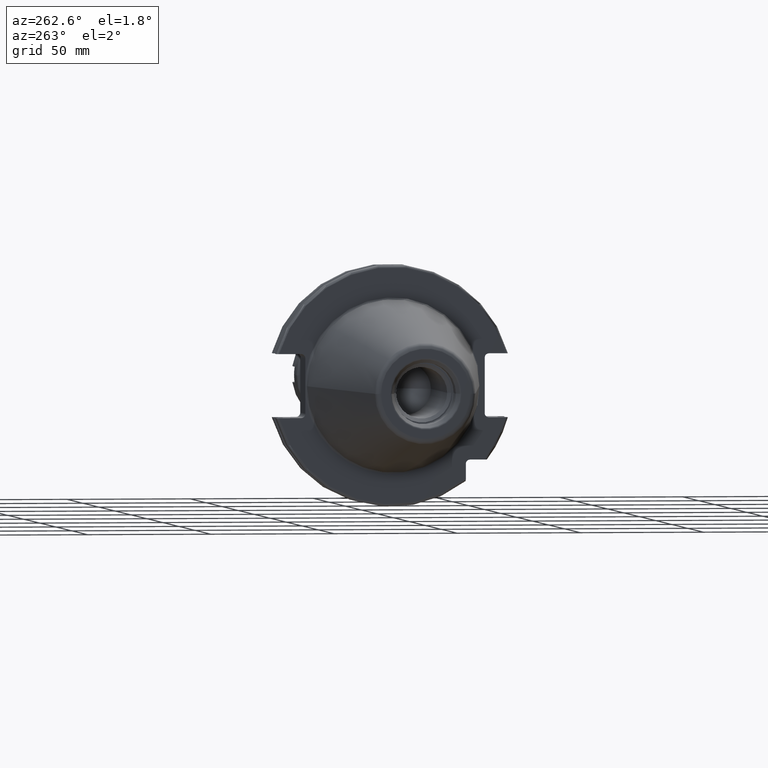
[diagram: clean part render]
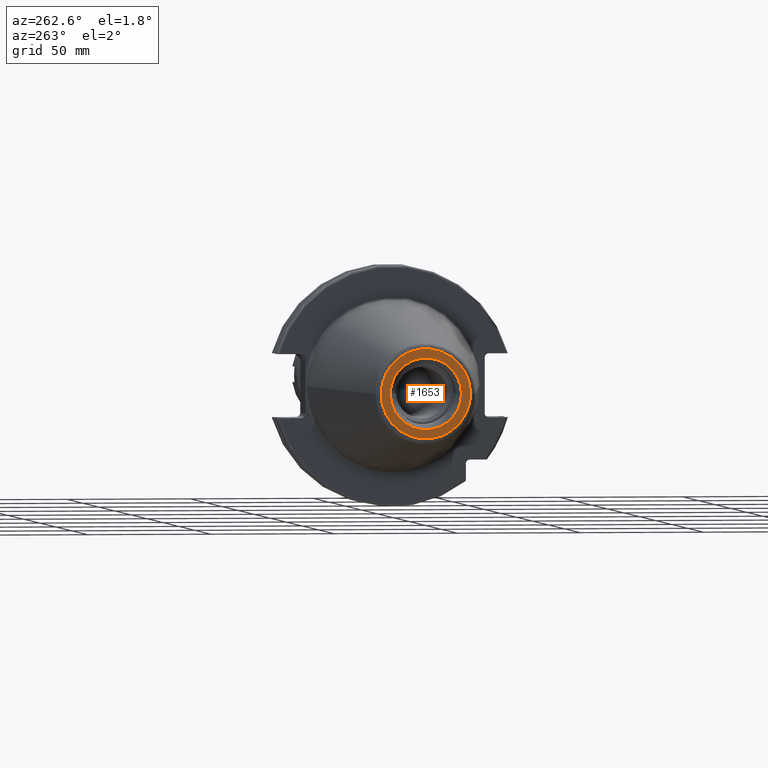
[diagram: same view with one face highlighted and labeled with its STEP entity id]
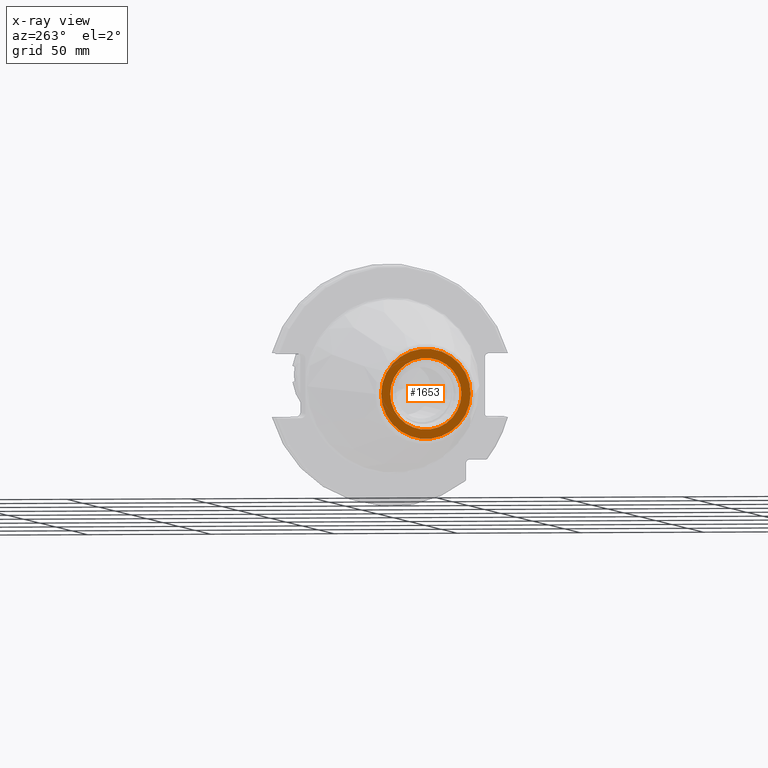
[diagram: x-ray of the same camera — body ghosted, the highlighted face saturated]
A machine part, auxiliary view. The second image highlights one B-rep face of the part: STEP entity #1653.
The next image is the same camera in x-ray: the body ghosted, the highlighted face saturated — about 0% of this face is hidden behind the body in this view.
In plain terms, the highlighted planar face has unit normal (1, 0, 0).
Its self-contained STEP definition (entity closure, byte-faithful):
#2=CARTESIAN_POINT('',(-1.016E2,0.E0,0.E0));
#3=DIRECTION('',(-1.E0,0.E0,0.E0));
#4=DIRECTION('',(0.E0,1.E0,0.E0));
#5=AXIS2_PLACEMENT_3D('',#2,#3,#4);
#7=CARTESIAN_POINT('',(-1.016E2,0.E0,0.E0));
#8=DIRECTION('',(1.E0,0.E0,0.E0));
#9=DIRECTION('',(0.E0,1.E0,0.E0));
#10=AXIS2_PLACEMENT_3D('',#7,#8,#9);
#12=CARTESIAN_POINT('',(-1.016E2,0.E0,0.E0));
#13=DIRECTION('',(1.E0,0.E0,0.E0));
#14=DIRECTION('',(0.E0,1.E0,0.E0));
#15=AXIS2_PLACEMENT_3D('',#12,#13,#14);
#17=CARTESIAN_POINT('',(-1.016E2,0.E0,0.E0));
#18=DIRECTION('',(1.E0,0.E0,0.E0));
#19=DIRECTION('',(0.E0,-1.E0,0.E0));
#20=AXIS2_PLACEMENT_3D('',#17,#18,#19);
#1357=CARTESIAN_POINT('',(-1.016E2,1.816144700117E1,0.E0));
#1359=VERTEX_POINT('',#1357);
#1361=CARTESIAN_POINT('',(-1.016E2,-1.816144700117E1,0.E0));
#1363=VERTEX_POINT('',#1361);
#1420=CARTESIAN_POINT('',(-1.016E2,1.446188021535E1,0.E0));
#1421=CARTESIAN_POINT('',(-1.016E2,-1.446188021535E1,0.E0));
#1422=VERTEX_POINT('',#1420);
#1423=VERTEX_POINT('',#1421);
#1636=CARTESIAN_POINT('',(-1.016E2,0.E0,0.E0));
#1637=DIRECTION('',(1.E0,0.E0,0.E0));
#1638=DIRECTION('',(0.E0,-1.E0,0.E0));
#1639=AXIS2_PLACEMENT_3D('',#1636,#1637,#1638);
#1640=PLANE('',#1639);
#1642=ORIENTED_EDGE('',*,*,#1641,.F.);
#1644=ORIENTED_EDGE('',*,*,#1643,.T.);
#1645=EDGE_LOOP('',(#1642,#1644));
#1646=FACE_OUTER_BOUND('',#1645,.F.);
#1648=ORIENTED_EDGE('',*,*,#1647,.F.);
#1650=ORIENTED_EDGE('',*,*,#1649,.F.);
#1651=EDGE_LOOP('',(#1648,#1650));
#1652=FACE_BOUND('',#1651,.F.);
#1653=ADVANCED_FACE('',(#1646,#1652),#1640,.F.);
#6=CIRCLE('',#5,1.816144700117E1);
#11=CIRCLE('',#10,1.816144700117E1);
#16=CIRCLE('',#15,1.446188021535E1);
#21=CIRCLE('',#20,1.446188021535E1);
#1641=EDGE_CURVE('',#1359,#1363,#6,.T.);
#1643=EDGE_CURVE('',#1359,#1363,#11,.T.);
#1647=EDGE_CURVE('',#1422,#1423,#16,.T.);
#1649=EDGE_CURVE('',#1423,#1422,#21,.T.);